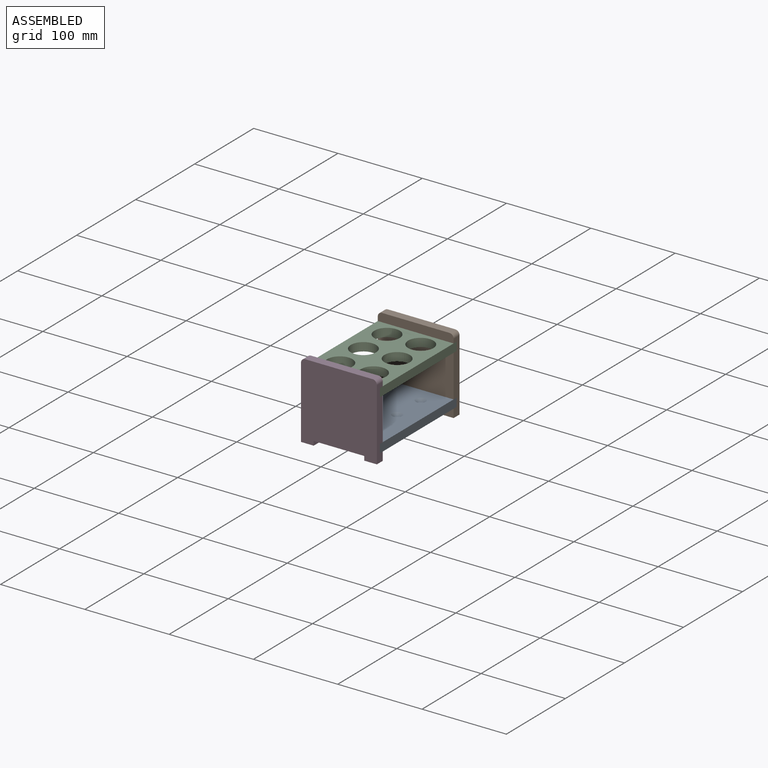
[diagram: assembled view]
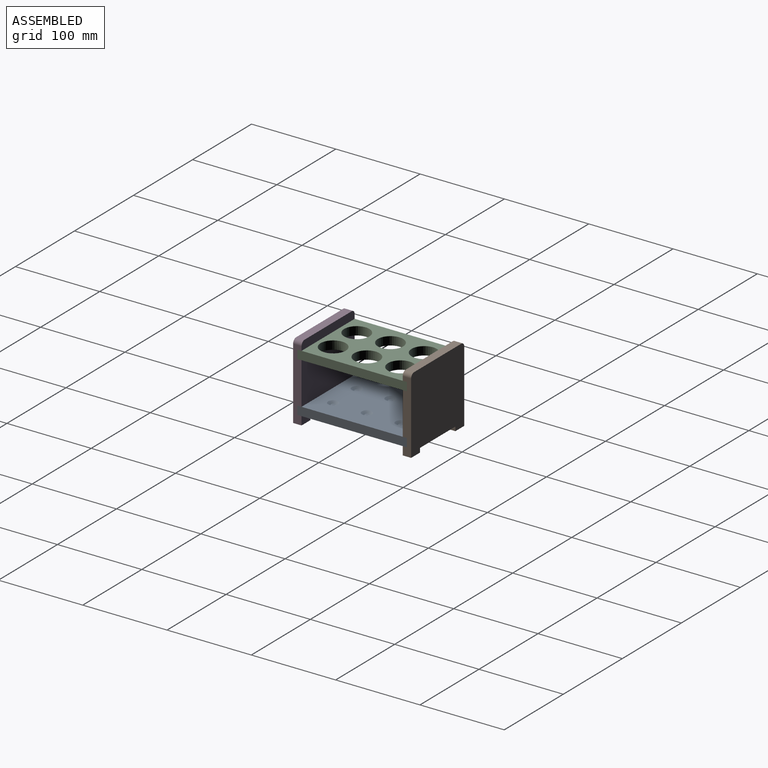
[diagram: assembled view, second angle]
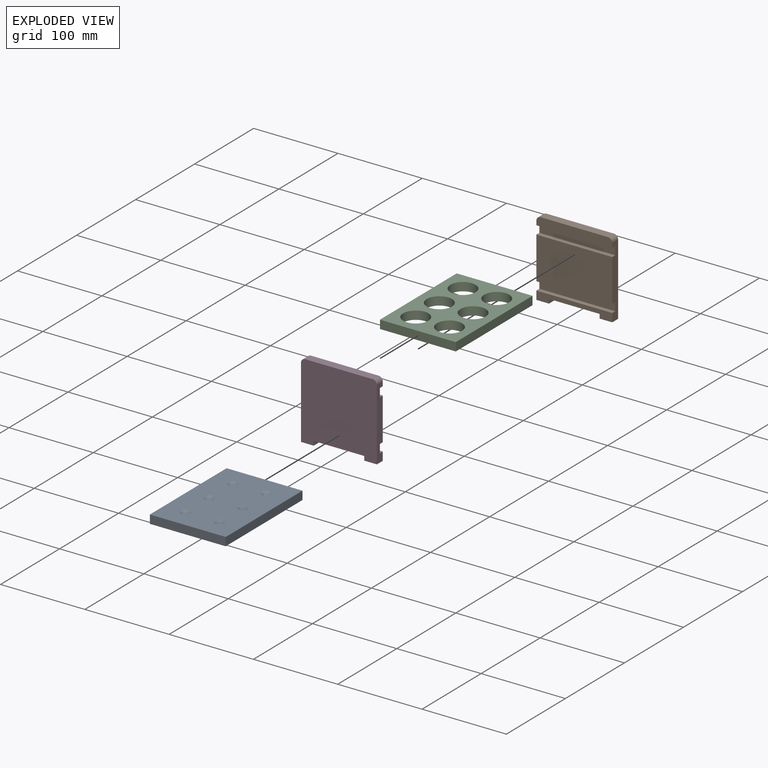
[diagram: exploded view]
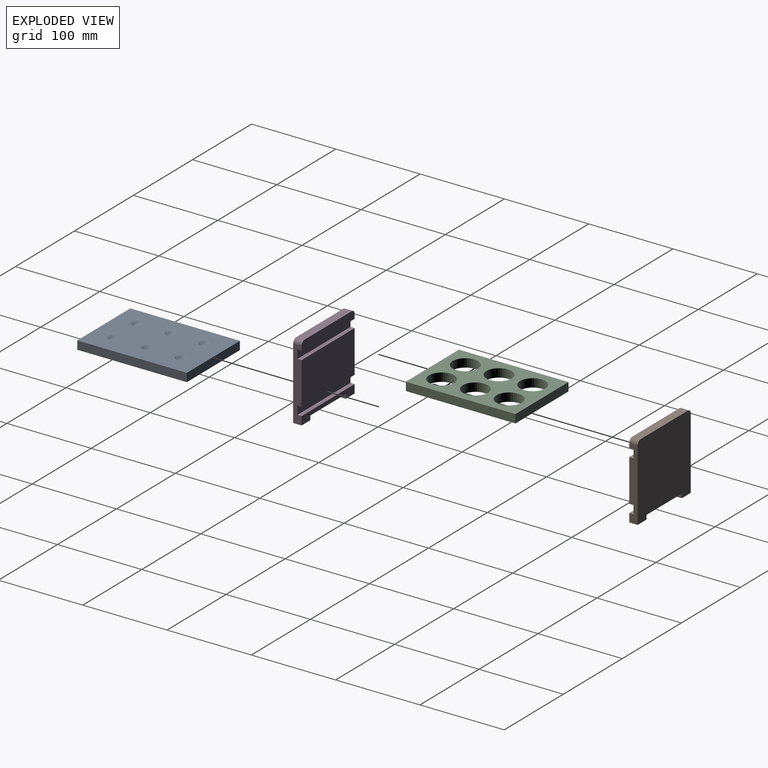
[diagram: exploded view, second angle]
ASSEMBLY  parts=4 mates=3
PART A: 18 faces, bbox 130x90x10 mm
  f0: plane 130x10mm, normal (0,-1,0), area 1300mm2, adj f1,f3,f4,f5
  f1: plane 90x10mm, normal (1,0,0), area 900mm2, adj f0,f2,f4,f5
  f2: plane 130x10mm, normal (0,1,0), area 1300mm2, adj f1,f3,f4,f5
  f3: plane 90x10mm, normal (-1,0,0), area 900mm2, adj f0,f2,f4,f5
  f4: plane 130x90mm, normal (0,0,1), area 11021.4mm2, adj f0,f1,f2,f3,f6,f8,f10,f12
  f5: plane 130x90mm, normal (0,0,-1), area 11700mm2, adj f0,f1,f2,f3
  f6: cone r=6mm half-angle=60deg, axis (0,0,1), area 107.3mm2, adj f4,f7
  f7: plane 5.07x5.07mm, normal (0,0,1), area 20.2mm2, adj f6
  f8: cone r=6mm half-angle=60deg, axis (0,0,1), area 107.3mm2, adj f4,f9
  f9: plane 5.07x5.07mm, normal (0,0,1), area 20.2mm2, adj f8
  f10: cone r=6mm half-angle=60deg, axis (0,0,1), area 107.3mm2, adj f4,f11
  f11: plane 5.07x5.07mm, normal (0,0,1), area 20.2mm2, adj f10
  f12: cone r=6mm half-angle=60deg, axis (0,0,1), area 107.3mm2, adj f4,f13
  f13: plane 5.07x5.07mm, normal (0,0,1), area 20.2mm2, adj f12
  f14: cone r=6mm half-angle=60deg, axis (0,0,1), area 107.3mm2, adj f4,f15
  f15: plane 5.07x5.07mm, normal (0,0,1), area 20.2mm2, adj f14
  f16: cone r=6mm half-angle=60deg, axis (0,0,1), area 107.3mm2, adj f4,f17
  f17: plane 5.07x5.07mm, normal (0,0,1), area 20.2mm2, adj f16
PART B: 20 faces, bbox 90x10x90 mm
  f0: plane 15x10mm, normal (0,0,-1), area 150mm2, adj f1,f3,f14,f17
  f1: plane 90x90mm, normal (0,-1,0), area 7789.3mm2, adj f0,f2,f12,f13,f14,f15,f16,f17
  f2: plane 15x10mm, normal (0,0,-1), area 150mm2, adj f1,f3,f13,f15
  f3: plane 90x10mm, normal (0,1,0), area 600mm2, adj f0,f2,f4,f13,f14,f15,f16,f17
  f4: plane 90x5mm, normal (0,0,1), area 450mm2, adj f3,f5,f13,f14
  f5: plane 90x10mm, normal (0,1,0), area 900mm2, adj f4,f6,f13,f14
  f6: plane 90x5mm, normal (0,0,-1), area 450mm2, adj f5,f7,f13,f14
  f7: plane 90x50mm, normal (0,1,0), area 4500mm2, adj f6,f8,f13,f14
  f8: plane 90x5mm, normal (0,0,1), area 450mm2, adj f7,f9,f13,f14
  f9: plane 90x10mm, normal (0,1,0), area 900mm2, adj f8,f10,f13,f14
  f10: plane 90x5mm, normal (0,0,-1), area 450mm2, adj f9,f11,f13,f14
  f11: plane 90x10mm, normal (0,1,0), area 889.3mm2, adj f10,f12,f13,f14,f18,f19
  f12: plane 80x10mm, normal (0,0,1), area 800mm2, adj f1,f11,f18,f19
  f13: plane 85x10mm, normal (1,0,0), area 750mm2, adj f1,f2,f3,f4,f5,f6,f7,f8
  f14: plane 85x10mm, normal (-1,0,0), area 750mm2, adj f0,f1,f3,f4,f5,f6,f7,f8
  f15: plane 10x5mm, normal (-1,0,0), area 50mm2, adj f1,f2,f3,f16
  f16: plane 60x10mm, normal (0,0,-1), area 600mm2, adj f1,f3,f15,f17
  f17: plane 10x5mm, normal (1,0,0), area 50mm2, adj f0,f1,f3,f16
  f18: cylinder r=5mm len=10mm, axis (0,-1,0), area 78.5mm2, adj f1,f11,f12,f14
  f19: cylinder r=5mm len=10mm, axis (0,1,0), area 78.5mm2, adj f1,f11,f12,f13
PART C: 12 faces, bbox 130x90x10 mm
  f0: plane 130x10mm, normal (0,-1,0), area 1300mm2, adj f1,f3,f4,f5
  f1: plane 90x10mm, normal (1,0,0), area 900mm2, adj f0,f2,f4,f5
  f2: plane 130x10mm, normal (0,1,0), area 1300mm2, adj f1,f3,f4,f5
  f3: plane 90x10mm, normal (-1,0,0), area 900mm2, adj f0,f2,f4,f5
  f4: plane 130x90mm, normal (0,0,1), area 7458.8mm2, adj f0,f1,f2,f3,f6,f7,f8,f9
  f5: plane 130x90mm, normal (0,0,-1), area 7458.8mm2, adj f0,f1,f2,f3,f6,f7,f8,f9
  f6: cylinder r=15mm len=30mm, axis (0,0,1), area 942.5mm2, adj f4,f5
  f7: cylinder r=15mm len=30mm, axis (0,0,1), area 942.5mm2, adj f4,f5
  f8: cylinder r=15mm len=30mm, axis (0,0,1), area 942.5mm2, adj f4,f5
  f9: cylinder r=15mm len=30mm, axis (0,0,1), area 942.5mm2, adj f4,f5
  f10: cylinder r=15mm len=30mm, axis (0,0,1), area 942.5mm2, adj f4,f5
  f11: cylinder r=15mm len=30mm, axis (0,0,1), area 942.5mm2, adj f4,f5
PART D: same geometry as B
PLACE A rot(axis=(0,0,-1),90deg) t=(-0.23,0.84,10.93)mm
PLACE B rot(axis=(0,0,-1),180deg) t=(-0.23,70.84,0.93)mm
PLACE C rot(axis=(0,0,1),90deg) t=(-0.23,0.84,70.93)mm
PLACE D t=(-0.23,-69.16,0.93)mm
MATE fastened D.f9 <-> C.f3  axis (0,1,0) through (-0.23,-64.16,75.93)mm
MATE fastened B.f5 <-> A.f3  axis (0,-1,0) through (-0.23,65.84,15.93)mm
MATE fastened B.f9 <-> C.f1  axis (0,-1,0) through (-0.23,65.84,75.93)mm
